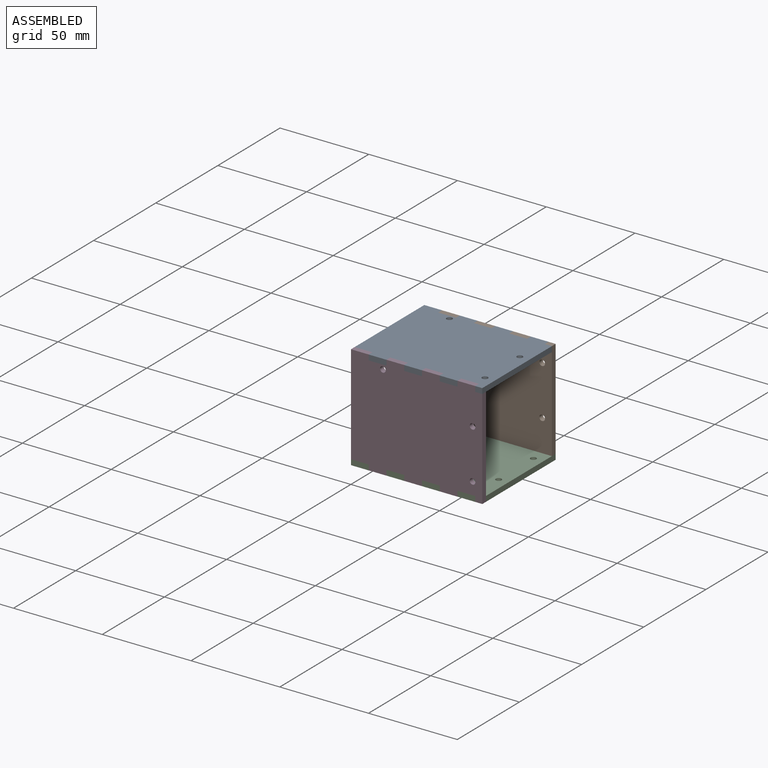
[diagram: assembled view]
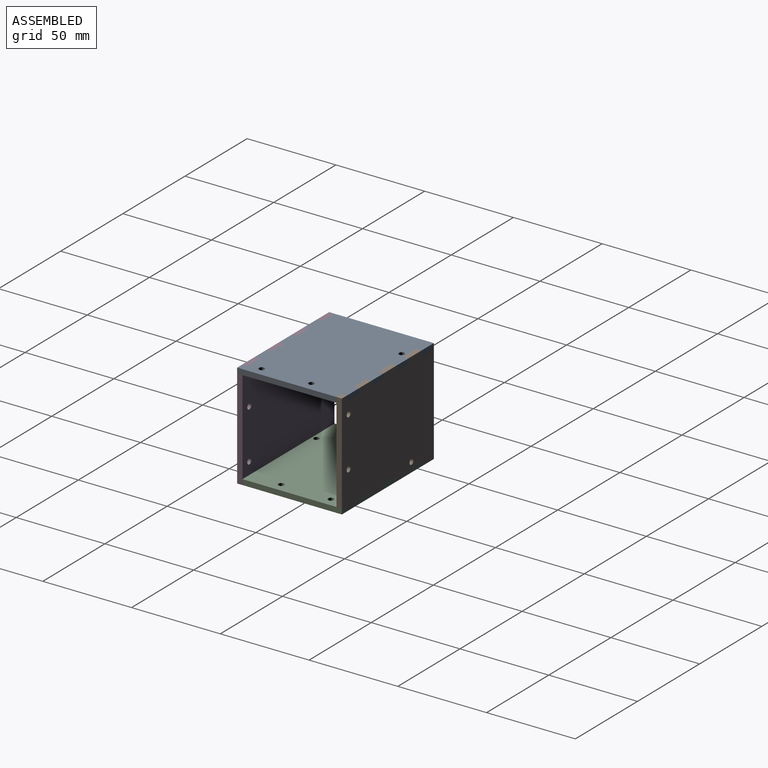
[diagram: assembled view, second angle]
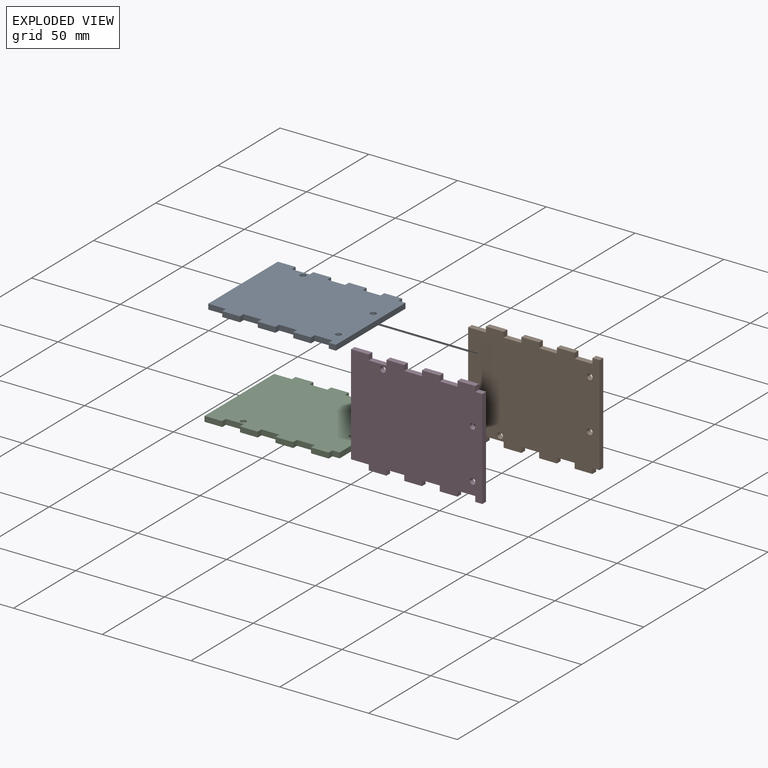
[diagram: exploded view]
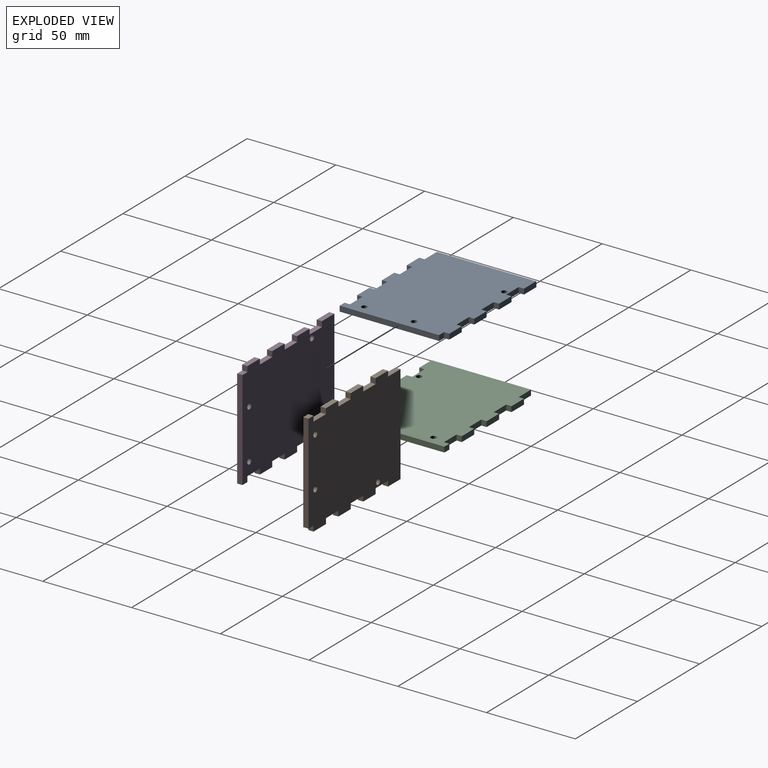
[diagram: exploded view, second angle]
ASSEMBLY  parts=4 mates=3
PART A: 37 faces, bbox 74x59x3 mm
  f0: plane 10x3mm, normal (0,1,0), area 30mm2, adj f1,f33,f35,f36
  f1: plane 3x3mm, normal (-1,0,0), area 9mm2, adj f0,f2,f35,f36
  f2: plane 10x3mm, normal (0,1,0), area 30mm2, adj f1,f3,f35,f36
  f3: plane 3x3mm, normal (1,0,0), area 9mm2, adj f2,f4,f35,f36
  f4: plane 10x3mm, normal (0,1,0), area 30mm2, adj f3,f5,f35,f36
  f5: plane 3x3mm, normal (-1,0,0), area 9mm2, adj f4,f6,f35,f36
  f6: plane 10x3mm, normal (0,1,0), area 30mm2, adj f5,f7,f35,f36
  f7: plane 3x3mm, normal (1,0,0), area 9mm2, adj f6,f8,f35,f36
  f8: plane 10x3mm, normal (0,1,0), area 30mm2, adj f7,f9,f35,f36
  f9: plane 3x3mm, normal (-1,0,0), area 9mm2, adj f8,f10,f35,f36
  f10: plane 10x3mm, normal (0,1,0), area 30mm2, adj f9,f11,f35,f36
  f11: plane 3x3mm, normal (1,0,0), area 9mm2, adj f10,f12,f35,f36
  f12: plane 10x3mm, normal (0,1,0), area 30mm2, adj f11,f13,f35,f36
  f13: plane 56x3mm, normal (-1,0,0), area 168mm2, adj f12,f14,f35,f36
  f14: plane 10x3mm, normal (0,-1,0), area 30mm2, adj f13,f15,f35,f36
  f15: plane 3x3mm, normal (-1,0,0), area 9mm2, adj f14,f16,f35,f36
  f16: plane 10x3mm, normal (0,-1,0), area 30mm2, adj f15,f17,f35,f36
  f17: plane 3x3mm, normal (1,0,0), area 9mm2, adj f16,f18,f35,f36
  f18: plane 10x3mm, normal (0,-1,0), area 30mm2, adj f17,f19,f35,f36
  f19: plane 3x3mm, normal (-1,0,0), area 9mm2, adj f18,f20,f35,f36
  f20: plane 10x3mm, normal (0,-1,0), area 30mm2, adj f19,f21,f35,f36
  f21: plane 3x3mm, normal (1,0,0), area 9mm2, adj f20,f22,f35,f36
  f22: plane 10x3mm, normal (0,-1,0), area 30mm2, adj f21,f23,f35,f36
  f23: plane 3x3mm, normal (-1,0,0), area 9mm2, adj f22,f24,f35,f36
  f24: plane 10x3mm, normal (0,-1,0), area 30mm2, adj f23,f25,f35,f36
  f25: plane 3x3mm, normal (1,0,0), area 9mm2, adj f24,f26,f35,f36
  f26: plane 10x3mm, normal (0,-1,0), area 30mm2, adj f25,f27,f35,f36
  f27: plane 3x3mm, normal (-1,0,0), area 9mm2, adj f26,f28,f35,f36
  f28: plane 4x3mm, normal (0,-1,0), area 12mm2, adj f27,f29,f35,f36
  f29: plane 56x3mm, normal (1,0,0), area 168mm2, adj f28,f30,f35,f36
  f30: plane 4x3mm, normal (0,1,0), area 12mm2, adj f29,f33,f35,f36
  f31: cylinder r=1.6mm len=3.2mm, axis (0,0,-1), area 30.2mm2, adj f35,f36
  f32: cylinder r=1.6mm len=3.2mm, axis (0,0,-1), area 30.2mm2, adj f35,f36
  f33: plane 3x3mm, normal (1,0,0), area 9mm2, adj f0,f30,f35,f36
  f34: cylinder r=1.6mm len=3.2mm, axis (0,0,-1), area 30.2mm2, adj f35,f36
  f35: plane 74x59mm, normal (0,0,1), area 4119.9mm2, adj f0,f1,f2,f3,f4,f5,f6,f7
  f36: plane 74x59mm, normal (0,0,-1), area 4119.9mm2, adj f0,f1,f2,f3,f4,f5,f6,f7
PART B: same geometry as A
PART C: same geometry as A
PART D: same geometry as A
PLACE A t=(-22.96,-6.21,9.07)mm
PLACE B rot(axis=(-1,0,0),90deg) t=(-22.96,20.29,-17.43)mm
PLACE C rot(axis=(-1,0,0),180deg) t=(-22.96,-6.21,-43.93)mm
PLACE D rot(axis=(1,0,0),90deg) t=(-22.96,-32.71,-17.43)mm
MATE fastened D.f33 <-> A.f27  axis (1,0,0) through (10.04,-34.21,10.57)mm
MATE fastened B.f27 <-> A.f33  axis (-1,0,0) through (10.04,21.79,10.57)mm
MATE fastened C.f33 <-> D.f27  axis (1,0,0) through (10.04,-34.21,-45.43)mm
